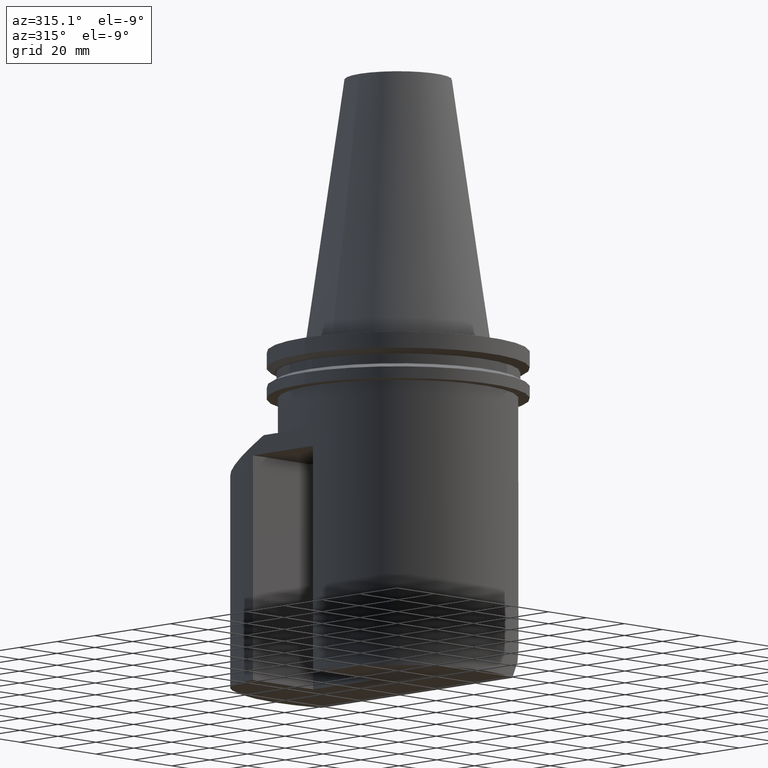
[diagram: clean part render]
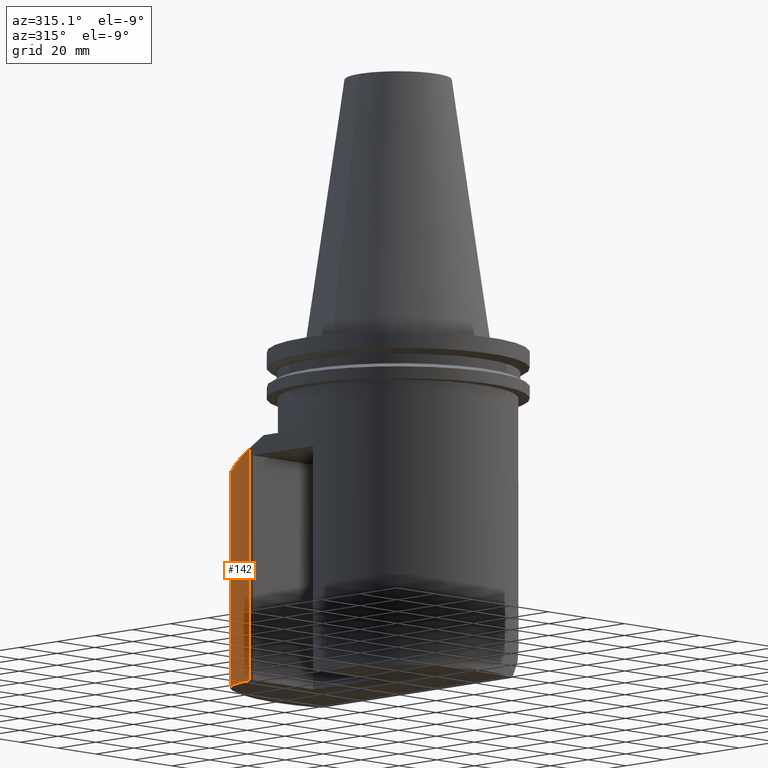
[diagram: same view with one face highlighted and labeled with its STEP entity id]
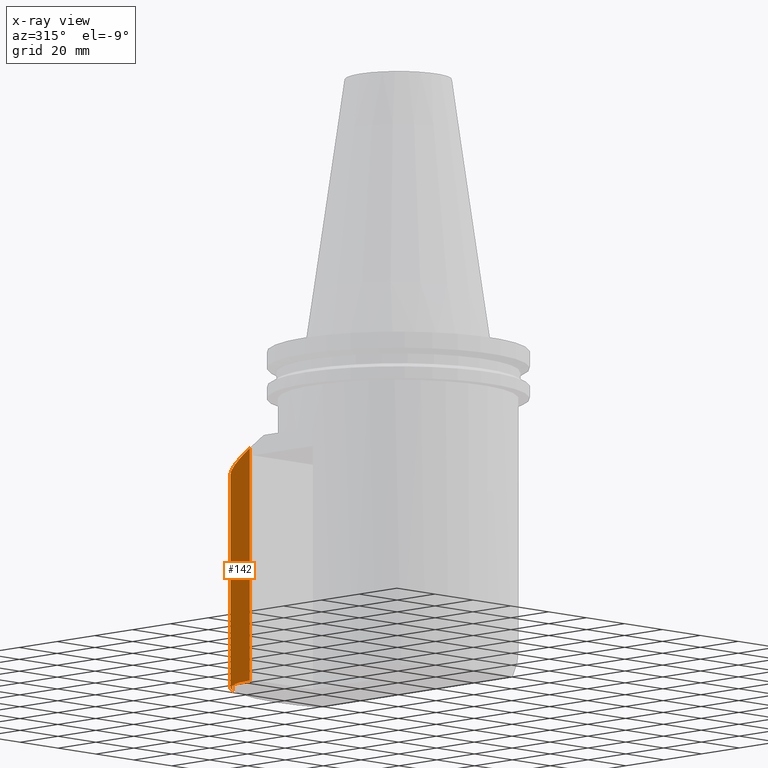
[diagram: x-ray of the same camera — body ghosted, the highlighted face saturated]
A machine part, auxiliary view. The second image highlights one B-rep face of the part: STEP entity #142.
The next image is the same camera in x-ray: the body ghosted, the highlighted face saturated — about 0% of this face is hidden behind the body in this view.
In plain terms, the highlighted cylindrical surface (partial cylindrical patch) has radius 25 mm, axis along (-0, 0, 1).
Its self-contained STEP definition (entity closure, byte-faithful):
#114=EDGE_CURVE('Unnamed[1]',#317,#318,#319,.T.);
#122=EDGE_CURVE('Unnamed[1]',#325,#317,#331,.T.);
#142=ADVANCED_FACE('Unnamed[1]',(#361),#362,.T.);
#156=EDGE_CURVE('Unnamed[1]',#318,#383,#384,.T.);
#248=EDGE_CURVE('Unnamed[1]',#383,#325,#509,.T.);
#317=VERTEX_POINT('',#586);
#318=VERTEX_POINT('',#587);
#319=B_SPLINE_CURVE_WITH_KNOTS('',3,(#588,#589,#590,#591,#592,#593,#594,#595,#596,#597,#598,#599,#600,#601,#602,#603,#604,#605,#606,#607,#608,#609),.UNSPECIFIED.,.F.,.F.,(4,2,2,2,2,2,2,2,2,2,4),(32.8394194779171,34.7964011372256,36.7533827965341,38.7103644558426,42.6243277744596,46.5382910930767,50.4522544116937,52.8448228945384,55.2373913773831,60.0225283430724,64.8076653087618),.UNSPECIFIED.);
#325=VERTEX_POINT('',#617);
#331=LINE('',#625,#626);
#361=FACE_OUTER_BOUND('',#669,.T.);
#362=CYLINDRICAL_SURFACE('',#670,25.0);
#383=VERTEX_POINT('',#699);
#384=LINE('',#700,#701);
#509=CIRCLE('',#909,25.0);
#586=CARTESIAN_POINT('',(-32.8205128205145,54.9437342942625,-47.0000000000007));
#587=CARTESIAN_POINT('',(-45.0000000000007,33.4813380855666,-39.0892146495215));
#588=CARTESIAN_POINT('',(-31.0759928747108,55.893887736139,-46.9518883177753));
#589=CARTESIAN_POINT('',(-31.6775533839552,55.5966042936937,-46.9843777844007));
#590=CARTESIAN_POINT('',(-32.2604926105774,55.2782610736319,-47.0000000000007));
#591=CARTESIAN_POINT('',(-33.3805330304503,54.6092075148939,-47.0000000000007));
#592=CARTESIAN_POINT('',(-33.9371677849014,54.2468288485359,-46.9843777844007));
#593=CARTESIAN_POINT('',(-35.0310047670385,53.4693131752229,-46.9193988511498));
#594=CARTESIAN_POINT('',(-35.5682079417749,53.0541773787034,-46.8700435922375));
#595=CARTESIAN_POINT('',(-37.1341468154317,51.7373387144859,-46.6698856350647));
#596=CARTESIAN_POINT('',(-38.1164426533126,50.763168999609,-46.4662737210916));
#597=CARTESIAN_POINT('',(-39.8920686133915,48.6857053376522,-45.9275807062338));
#598=CARTESIAN_POINT('',(-40.6868228858491,47.5809060631316,-45.592073170251));
#599=CARTESIAN_POINT('',(-42.05659636646,45.3240157822191,-44.8177252085511));
#600=CARTESIAN_POINT('',(-42.6317207682664,44.172005399676,-44.3788358865793));
#601=CARTESIAN_POINT('',(-43.3829828617962,42.357771964723,-43.6282950330194));
#602=CARTESIAN_POINT('',(-43.6394601463752,41.6510204096534,-43.3220426404158));
#603=CARTESIAN_POINT('',(-44.0885797422425,40.2124681014381,-42.6689559132447));
#604=CARTESIAN_POINT('',(-44.2812305284091,39.4806703748303,-42.3221207402296));
#605=CARTESIAN_POINT('',(-44.7579416504319,37.2661631987074,-41.2262265239291));
#606=CARTESIAN_POINT('',(-44.9394671376526,35.7642203919041,-40.4211063875234));
#607=CARTESIAN_POINT('',(-45.0346532081921,32.8069630561007,-38.7042644691875));
#608=CARTESIAN_POINT('',(-44.9485642712005,31.3500708502179,-37.7914887530078));
#609=CARTESIAN_POINT('',(-44.7506740801499,29.9593879754386,-36.8533913369499));
#617=CARTESIAN_POINT('',(-32.8205128205145,54.9437342942625,-127.0));
#625=CARTESIAN_POINT('',(-32.8205128205141,54.9437342942634,-279.999999999999));
#626=VECTOR('',#1004,1.0);
#669=EDGE_LOOP('',(#1027,#1028,#1029,#1030));
#670=AXIS2_PLACEMENT_3D('',#1031,#1032,#1033);
#699=CARTESIAN_POINT('',(-45.0000000000007,33.4813380855666,-127.0));
#700=CARTESIAN_POINT('',(-45.0000000000007,33.4813380855666,-279.999999999999));
#701=VECTOR('',#1054,1.0);
#909=AXIS2_PLACEMENT_3D('',#1216,#1217,#1218);
#1004=DIRECTION('',(-1.22464679914735E-016,6.12323399573677E-017,1.0));
#1027=ORIENTED_EDGE('',*,*,#248,.F.);
#1028=ORIENTED_EDGE('',*,*,#156,.F.);
#1029=ORIENTED_EDGE('',*,*,#114,.F.);
#1030=ORIENTED_EDGE('',*,*,#122,.F.);
#1031=CARTESIAN_POINT('',(-20.0000000000007,33.4813380855666,-279.999999999999));
#1032=DIRECTION('',(-1.22464679914735E-016,6.12323399573677E-017,1.0));
#1033=DIRECTION('',(3.06161699786838E-016,1.0,-6.12323399573677E-017));
#1054=DIRECTION('',(1.22464679914735E-016,-6.12323399573677E-017,-1.0));
#1216=CARTESIAN_POINT('',(-20.0000000000007,33.4813380855666,-127.0));
#1217=DIRECTION('',(5.45153519811552E-015,-6.12323399573687E-017,-1.0));
#1218=DIRECTION('',(3.06161699786838E-016,1.0,-6.1232339957367E-017));